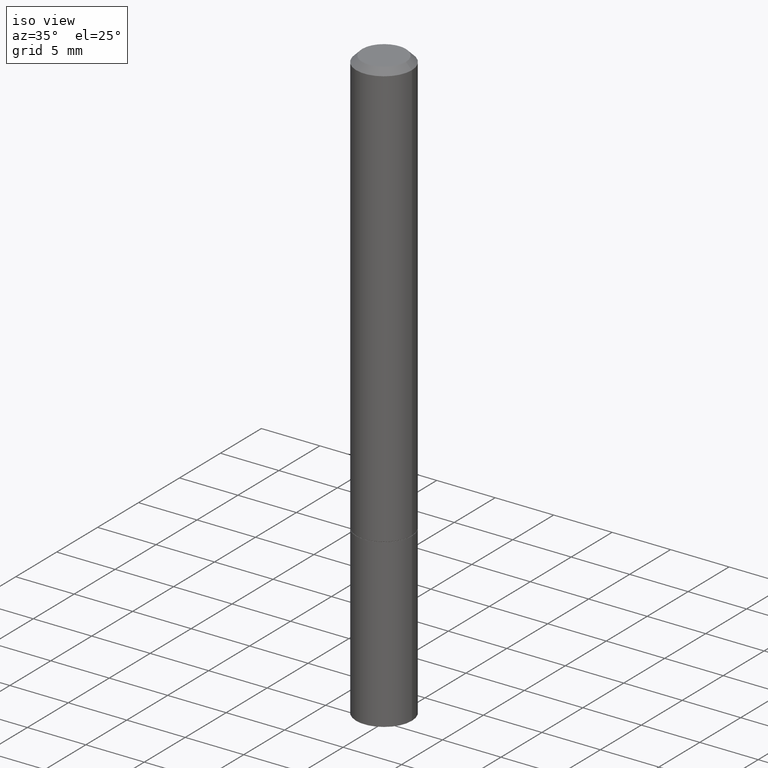
[diagram: clean part render]
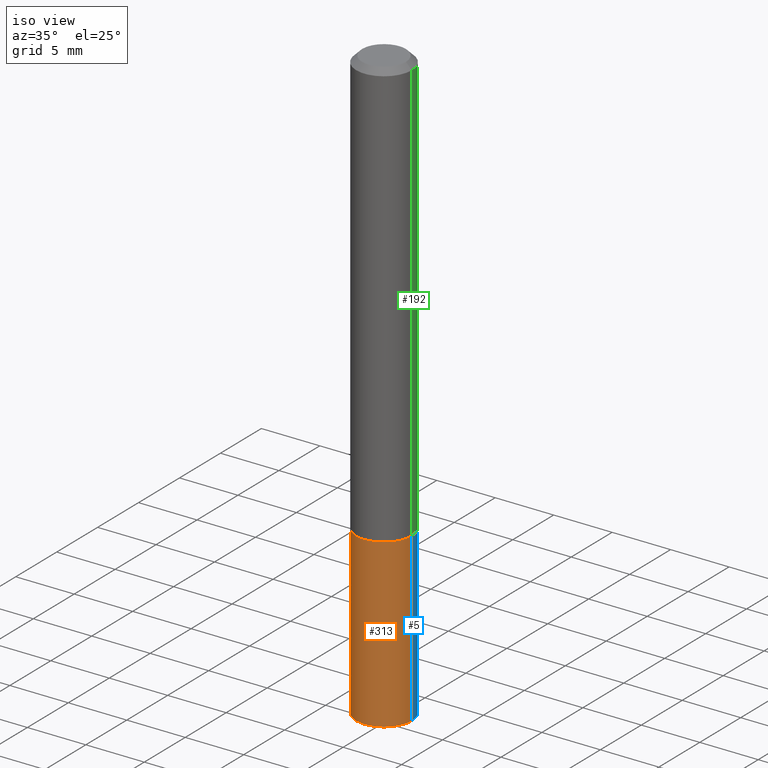
[diagram: same view with three faces highlighted in distinct colors, each labeled with its STEP entity id]
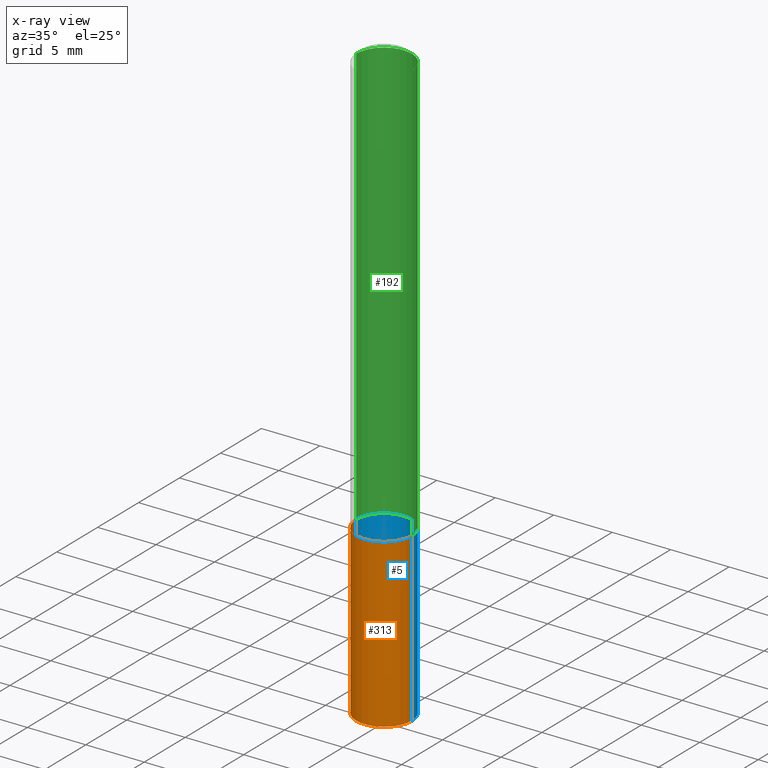
[diagram: x-ray of the same camera — body ghosted, the three highlighted faces saturated]
A machine part, iso view with three faces highlighted in distinct colors.
The next image is the same camera in x-ray (body ghosted, the three faces saturated) — at least one of them is partly hidden behind the body in this view.
Their STEP definitions:

[orange] entity #313 — the highlighted cylindrical surface (edge-blend (fillet) strip) has radius 2.3813 mm, axis along (-0, 0, 1).
#1 = DIRECTION ( 'NONE',  ( 1.000000000000000000, -6.982962677686265922E-15, 4.876176775795935793E-29 ) ) ;
#8 = DIRECTION ( 'NONE',  ( -2.445468806185136597E-29, 3.491481338843145583E-15, 1.000000000000000000 ) ) ;
#9 = CARTESIAN_POINT ( 'NONE',  ( -0.09375000000000001388, -5.334849736361562435E-15, -2.000000000000000000 ) ) ;
#21 = ORIENTED_EDGE ( 'NONE', *, *, #91, .F. ) ;
#59 = LINE ( 'NONE', #170, #325 ) ;
#69 = AXIS2_PLACEMENT_3D ( 'NONE', #203, #226, #330 ) ;
#79 = VERTEX_POINT ( 'NONE', #327 ) ;
#84 = EDGE_CURVE ( 'NONE', #156, #338, #85, .T. ) ;
#85 = LINE ( 'NONE', #93, #153 ) ;
#89 = DIRECTION ( 'NONE',  ( -2.445468806185136877E-29, 3.491481338843145188E-15, 1.000000000000000000 ) ) ;
#91 = EDGE_CURVE ( 'NONE', #338, #308, #291, .T. ) ;
#93 = CARTESIAN_POINT ( 'NONE',  ( -0.09375000000000001388, 6.661338147750940229E-16, -4.611501647113973995E-30 ) ) ;
#103 = CIRCLE ( 'NONE', #356, 0.09375000000000001388 ) ;
#107 = EDGE_CURVE ( 'NONE', #79, #308, #59, .T. ) ;
#111 = EDGE_LOOP ( 'NONE', ( #280, #302, #211, #21 ) ) ;
#115 = DIRECTION ( 'NONE',  ( 1.000000000000000000, -6.982962677686261189E-15, 0.000000000000000000 ) ) ;
#144 = EDGE_CURVE ( 'NONE', #156, #79, #103, .T. ) ;
#153 = VECTOR ( 'NONE', #194, 39.37007874015748143 ) ;
#156 = VERTEX_POINT ( 'NONE', #9 ) ;
#170 = CARTESIAN_POINT ( 'NONE',  ( 0.09375000000000001388, -6.546527510330875041E-16, 4.571415727308690506E-30 ) ) ;
#194 = DIRECTION ( 'NONE',  ( -2.445468806185136877E-29, 3.491481338843145188E-15, 1.000000000000000000 ) ) ;
#202 = CARTESIAN_POINT ( 'NONE',  ( 4.890937612370273194E-29, -6.982962677686291165E-15, -2.000000000000000000 ) ) ;
#203 = CARTESIAN_POINT ( 'NONE',  ( 3.515361408891133858E-29, -5.019004424587021553E-15, -1.437500000000000000 ) ) ;
#211 = ORIENTED_EDGE ( 'NONE', *, *, #107, .T. ) ;
#212 = CARTESIAN_POINT ( 'NONE',  ( 0.000000000000000000, 0.000000000000000000, 0.000000000000000000 ) ) ;
#226 = DIRECTION ( 'NONE',  ( -2.445468806185136597E-29, 3.491481338843145583E-15, 1.000000000000000000 ) ) ;
#232 = CARTESIAN_POINT ( 'NONE',  ( -0.09375000000000001388, -5.334849736361562435E-15, -1.437500000000000000 ) ) ;
#239 = CARTESIAN_POINT ( 'NONE',  ( 0.09375000000000001388, -5.673657175620109057E-15, -1.437500000000000000 ) ) ;
#257 = CYLINDRICAL_SURFACE ( 'NONE', #310, 0.09375000000000001388 ) ;
#280 = ORIENTED_EDGE ( 'NONE', *, *, #84, .F. ) ;
#286 = FACE_OUTER_BOUND ( 'NONE', #111, .T. ) ;
#291 = CIRCLE ( 'NONE', #69, 0.09375000000000001388 ) ;
#302 = ORIENTED_EDGE ( 'NONE', *, *, #144, .T. ) ;
#308 = VERTEX_POINT ( 'NONE', #239 ) ;
#310 = AXIS2_PLACEMENT_3D ( 'NONE', #212, #8, #1 ) ;
#313 = ADVANCED_FACE ( 'NONE', ( #286 ), #257, .T. ) ;
#325 = VECTOR ( 'NONE', #89, 39.37007874015748143 ) ;
#327 = CARTESIAN_POINT ( 'NONE',  ( 0.09375000000000001388, -7.637615428719378669E-15, -2.000000000000000000 ) ) ;
#330 = DIRECTION ( 'NONE',  ( 1.000000000000000000, -6.982962677686261189E-15, 0.000000000000000000 ) ) ;
#338 = VERTEX_POINT ( 'NONE', #232 ) ;
#356 = AXIS2_PLACEMENT_3D ( 'NONE', #202, #357, #115 ) ;
#357 = DIRECTION ( 'NONE',  ( -2.445468806185136597E-29, 3.491481338843145583E-15, 1.000000000000000000 ) ) ;

[blue] entity #5 — the highlighted cylindrical surface (edge-blend (fillet) strip) has radius 2.3813 mm, axis along (-0, 0, 1).
#5 = ADVANCED_FACE ( 'NONE', ( #284 ), #116, .T. ) ;
#9 = CARTESIAN_POINT ( 'NONE',  ( -0.09375000000000001388, -5.334849736361562435E-15, -2.000000000000000000 ) ) ;
#10 = ORIENTED_EDGE ( 'NONE', *, *, #359, .F. ) ;
#33 = CARTESIAN_POINT ( 'NONE',  ( 4.890937612370273194E-29, -6.982962677686291165E-15, -2.000000000000000000 ) ) ;
#52 = DIRECTION ( 'NONE',  ( -2.445468806185136597E-29, 3.491481338843145583E-15, 1.000000000000000000 ) ) ;
#59 = LINE ( 'NONE', #170, #325 ) ;
#66 = DIRECTION ( 'NONE',  ( 1.000000000000000000, -6.982962677686261189E-15, 0.000000000000000000 ) ) ;
#79 = VERTEX_POINT ( 'NONE', #327 ) ;
#84 = EDGE_CURVE ( 'NONE', #156, #338, #85, .T. ) ;
#85 = LINE ( 'NONE', #93, #153 ) ;
#89 = DIRECTION ( 'NONE',  ( -2.445468806185136877E-29, 3.491481338843145188E-15, 1.000000000000000000 ) ) ;
#93 = CARTESIAN_POINT ( 'NONE',  ( -0.09375000000000001388, 6.661338147750940229E-16, -4.611501647113973995E-30 ) ) ;
#94 = DIRECTION ( 'NONE',  ( 1.000000000000000000, -6.982962677686261189E-15, 0.000000000000000000 ) ) ;
#107 = EDGE_CURVE ( 'NONE', #79, #308, #59, .T. ) ;
#114 = AXIS2_PLACEMENT_3D ( 'NONE', #148, #52, #333 ) ;
#116 = CYLINDRICAL_SURFACE ( 'NONE', #114, 0.09375000000000001388 ) ;
#139 = ORIENTED_EDGE ( 'NONE', *, *, #107, .F. ) ;
#148 = CARTESIAN_POINT ( 'NONE',  ( 0.000000000000000000, 0.000000000000000000, 0.000000000000000000 ) ) ;
#153 = VECTOR ( 'NONE', #194, 39.37007874015748143 ) ;
#156 = VERTEX_POINT ( 'NONE', #9 ) ;
#170 = CARTESIAN_POINT ( 'NONE',  ( 0.09375000000000001388, -6.546527510330875041E-16, 4.571415727308690506E-30 ) ) ;
#171 = CIRCLE ( 'NONE', #266, 0.09375000000000001388 ) ;
#194 = DIRECTION ( 'NONE',  ( -2.445468806185136877E-29, 3.491481338843145188E-15, 1.000000000000000000 ) ) ;
#208 = CARTESIAN_POINT ( 'NONE',  ( 3.515361408891133858E-29, -5.019004424587021553E-15, -1.437500000000000000 ) ) ;
#232 = CARTESIAN_POINT ( 'NONE',  ( -0.09375000000000001388, -5.334849736361562435E-15, -1.437500000000000000 ) ) ;
#239 = CARTESIAN_POINT ( 'NONE',  ( 0.09375000000000001388, -5.673657175620109057E-15, -1.437500000000000000 ) ) ;
#242 = ORIENTED_EDGE ( 'NONE', *, *, #345, .T. ) ;
#260 = CIRCLE ( 'NONE', #295, 0.09375000000000001388 ) ;
#266 = AXIS2_PLACEMENT_3D ( 'NONE', #33, #335, #94 ) ;
#273 = EDGE_LOOP ( 'NONE', ( #242, #309, #10, #139 ) ) ;
#284 = FACE_OUTER_BOUND ( 'NONE', #273, .T. ) ;
#295 = AXIS2_PLACEMENT_3D ( 'NONE', #208, #315, #66 ) ;
#308 = VERTEX_POINT ( 'NONE', #239 ) ;
#309 = ORIENTED_EDGE ( 'NONE', *, *, #84, .T. ) ;
#315 = DIRECTION ( 'NONE',  ( -2.445468806185136597E-29, 3.491481338843145583E-15, 1.000000000000000000 ) ) ;
#325 = VECTOR ( 'NONE', #89, 39.37007874015748143 ) ;
#327 = CARTESIAN_POINT ( 'NONE',  ( 0.09375000000000001388, -7.637615428719378669E-15, -2.000000000000000000 ) ) ;
#333 = DIRECTION ( 'NONE',  ( 1.000000000000000000, -6.982962677686265922E-15, 4.876176775795935793E-29 ) ) ;
#335 = DIRECTION ( 'NONE',  ( -2.445468806185136597E-29, 3.491481338843145583E-15, 1.000000000000000000 ) ) ;
#338 = VERTEX_POINT ( 'NONE', #232 ) ;
#345 = EDGE_CURVE ( 'NONE', #79, #156, #171, .T. ) ;
#359 = EDGE_CURVE ( 'NONE', #308, #338, #260, .T. ) ;

[green] entity #192 — the highlighted cylindrical surface (edge-blend (fillet) strip) has radius 2.3812 mm, axis along (-0, 0, 1).
#17 = ORIENTED_EDGE ( 'NONE', *, *, #198, .T. ) ;
#23 = CIRCLE ( 'NONE', #88, 0.09374999999999983347 ) ;
#28 = CARTESIAN_POINT ( 'NONE',  ( 0.09374999999999991673, -6.546527510330869125E-16, 4.571415727308685602E-30 ) ) ;
#31 = CARTESIAN_POINT ( 'NONE',  ( 4.890937612370274910E-31, -6.982962677686295307E-17, -0.02000000000000000736 ) ) ;
#36 = VERTEX_POINT ( 'NONE', #231 ) ;
#47 = AXIS2_PLACEMENT_3D ( 'NONE', #176, #154, #261 ) ;
#49 = EDGE_CURVE ( 'NONE', #173, #137, #169, .T. ) ;
#57 = VECTOR ( 'NONE', #90, 39.37007874015748143 ) ;
#62 = CARTESIAN_POINT ( 'NONE',  ( 0.000000000000000000, 0.000000000000000000, 0.000000000000000000 ) ) ;
#68 = DIRECTION ( 'NONE',  ( -2.445468806185136597E-29, 3.491481338843145583E-15, 1.000000000000000000 ) ) ;
#76 = ORIENTED_EDGE ( 'NONE', *, *, #324, .F. ) ;
#78 = DIRECTION ( 'NONE',  ( -2.445468806185136877E-29, 3.491481338843145188E-15, 1.000000000000000000 ) ) ;
#88 = AXIS2_PLACEMENT_3D ( 'NONE', #31, #149, #122 ) ;
#90 = DIRECTION ( 'NONE',  ( -2.445468806185136877E-29, 3.491481338843145188E-15, 1.000000000000000000 ) ) ;
#101 = FACE_OUTER_BOUND ( 'NONE', #364, .T. ) ;
#118 = VECTOR ( 'NONE', #78, 39.37007874015748143 ) ;
#122 = DIRECTION ( 'NONE',  ( 1.000000000000000000, -6.982962677686267499E-15, 0.000000000000000000 ) ) ;
#137 = VERTEX_POINT ( 'NONE', #247 ) ;
#149 = DIRECTION ( 'NONE',  ( -2.445468806185136597E-29, 3.491481338843145583E-15, 1.000000000000000000 ) ) ;
#154 = DIRECTION ( 'NONE',  ( -2.445468806185136597E-29, 3.491481338843145583E-15, 1.000000000000000000 ) ) ;
#161 = VERTEX_POINT ( 'NONE', #235 ) ;
#169 = LINE ( 'NONE', #28, #57 ) ;
#173 = VERTEX_POINT ( 'NONE', #366 ) ;
#176 = CARTESIAN_POINT ( 'NONE',  ( 3.512915940084948255E-29, -5.015512943248178546E-15, -1.436499999999999888 ) ) ;
#177 = AXIS2_PLACEMENT_3D ( 'NONE', #62, #68, #214 ) ;
#178 = LINE ( 'NONE', #353, #118 ) ;
#181 = ORIENTED_EDGE ( 'NONE', *, *, #307, .T. ) ;
#192 = ADVANCED_FACE ( 'NONE', ( #101 ), #210, .T. ) ;
#198 = EDGE_CURVE ( 'NONE', #161, #36, #178, .T. ) ;
#210 = CYLINDRICAL_SURFACE ( 'NONE', #177, 0.09374999999999991673 ) ;
#214 = DIRECTION ( 'NONE',  ( 1.000000000000000000, -6.982962677686266711E-15, 4.876176775795935793E-29 ) ) ;
#225 = ORIENTED_EDGE ( 'NONE', *, *, #49, .F. ) ;
#231 = CARTESIAN_POINT ( 'NONE',  ( -0.09374999999999983347, 5.848231242562234171E-16, -0.02000000000000000736 ) ) ;
#235 = CARTESIAN_POINT ( 'NONE',  ( -0.09375000000000001388, -1.876537470237424631E-15, -1.436499999999999888 ) ) ;
#247 = CARTESIAN_POINT ( 'NONE',  ( 0.09374999999999983347, -7.130013140679429031E-16, -0.02000000000000000736 ) ) ;
#261 = DIRECTION ( 'NONE',  ( 1.000000000000000000, -6.982962677686261189E-15, 0.000000000000000000 ) ) ;
#307 = EDGE_CURVE ( 'NONE', #173, #161, #318, .T. ) ;
#318 = CIRCLE ( 'NONE', #47, 0.09375000000000001388 ) ;
#324 = EDGE_CURVE ( 'NONE', #137, #36, #23, .T. ) ;
#353 = CARTESIAN_POINT ( 'NONE',  ( -0.09374999999999991673, 6.661338147750933326E-16, -4.611501647113969791E-30 ) ) ;
#364 = EDGE_LOOP ( 'NONE', ( #181, #17, #76, #225 ) ) ;
#366 = CARTESIAN_POINT ( 'NONE',  ( 0.09375000000000001388, -5.670165694281265261E-15, -1.436499999999999888 ) ) ;